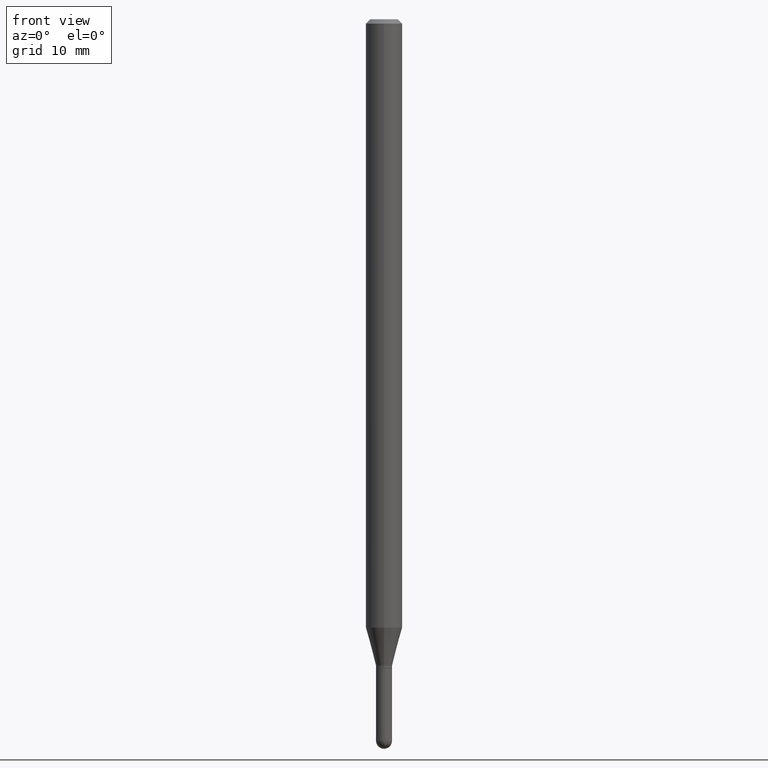
[diagram: clean part render]
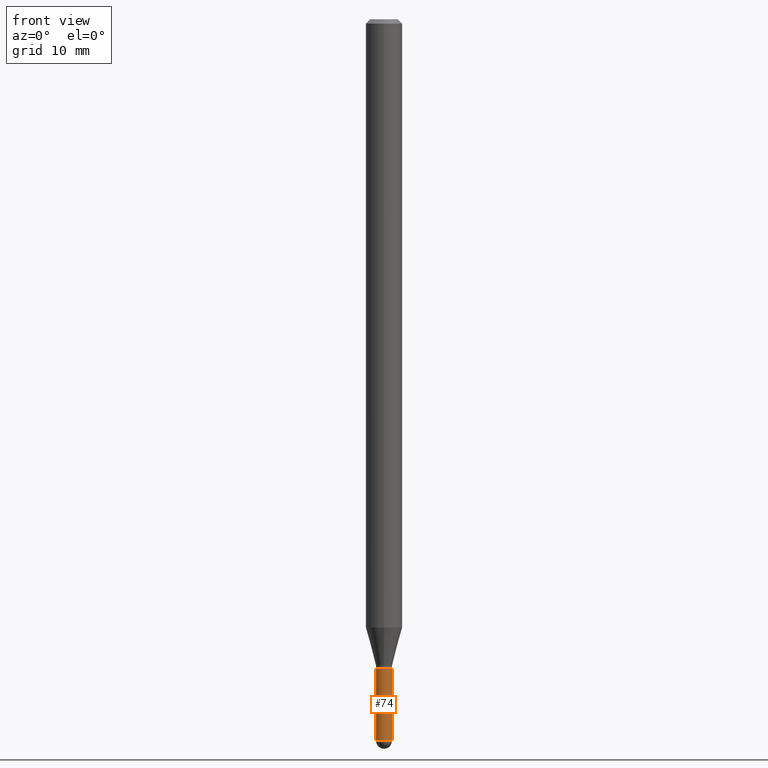
[diagram: same view with one face highlighted and labeled with its STEP entity id]
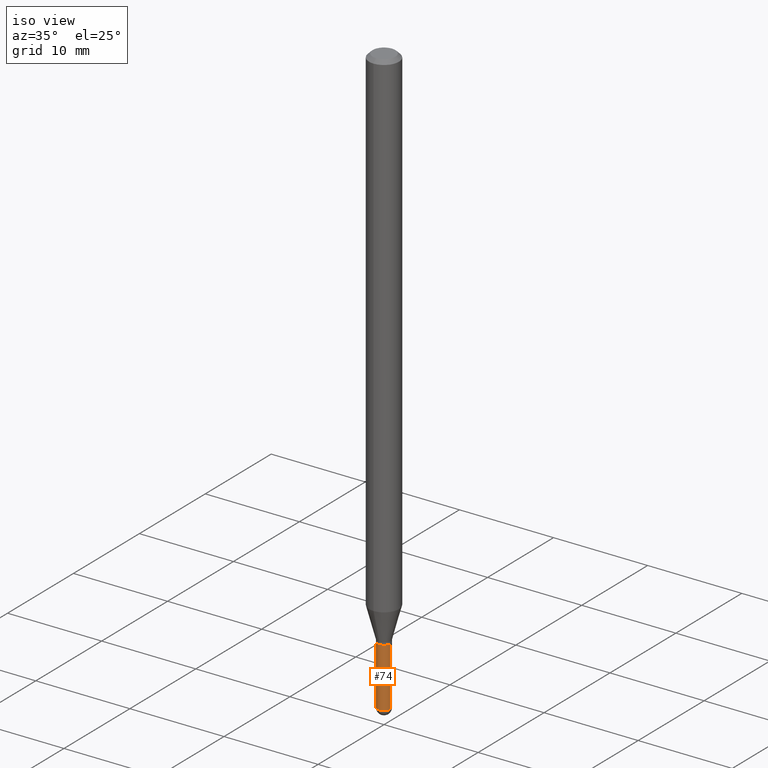
[diagram: same view with one face highlighted and labeled with its STEP entity id]
A machine part, front view. The second image highlights one B-rep face of the part: STEP entity #74.
A second angle (iso view) of the same face is appended — the face is thin or edge-on in the first view.
In plain terms, the highlighted cylindrical surface (edge-blend (fillet) strip) has radius 0.6985 mm, axis along (-0, 0, 1).
Its self-contained STEP definition (entity closure, byte-faithful):
#27 = ORIENTED_EDGE ( 'NONE', *, *, #470, .T. ) ;
#34 = EDGE_CURVE ( 'NONE', #144, #251, #220, .T. ) ;
#37 = CARTESIAN_POINT ( 'NONE',  ( -0.02750000000000000014, 1.953992523340275521E-16, -1.352707149820099181E-30 ) ) ;
#48 = ORIENTED_EDGE ( 'NONE', *, *, #405, .T. ) ;
#66 = ORIENTED_EDGE ( 'NONE', *, *, #466, .F. ) ;
#74 = ADVANCED_FACE ( 'NONE', ( #385 ), #296, .T. ) ;
#99 = EDGE_CURVE ( 'NONE', #144, #172, #420, .T. ) ;
#112 = DIRECTION ( 'NONE',  ( 1.000000000000000000, -6.982962677686279332E-15, 0.000000000000000000 ) ) ;
#122 = CARTESIAN_POINT ( 'NONE',  ( 5.441168093761929600E-29, -7.768545978925998537E-15, -2.225000000000000089 ) ) ;
#132 = VECTOR ( 'NONE', #268, 39.37007874015748143 ) ;
#139 = VERTEX_POINT ( 'NONE', #191 ) ;
#144 = VERTEX_POINT ( 'NONE', #271 ) ;
#151 = DIRECTION ( 'NONE',  ( -2.445468806185136597E-29, 3.491481338843145583E-15, 1.000000000000000000 ) ) ;
#152 = CARTESIAN_POINT ( 'NONE',  ( -1.953992523339674261E-16, -0.02750000000000868070, -2.472499999999999254 ) ) ;
#161 = DIRECTION ( 'NONE',  ( -2.445468806185136597E-29, 3.491481338843145583E-15, 1.000000000000000000 ) ) ;
#172 = VERTEX_POINT ( 'NONE', #468 ) ;
#177 = ORIENTED_EDGE ( 'NONE', *, *, #34, .T. ) ;
#187 = CARTESIAN_POINT ( 'NONE',  ( 0.000000000000000000, 0.000000000000000000, 0.000000000000000000 ) ) ;
#191 = CARTESIAN_POINT ( 'NONE',  ( 0.02750000000000000014, -7.960577452562371818E-15, -2.225000000000000089 ) ) ;
#199 = CARTESIAN_POINT ( 'NONE',  ( 6.046421623292748621E-29, -8.632687610289675147E-15, -2.472499999999999254 ) ) ;
#202 = DIRECTION ( 'NONE',  ( 1.000000000000000000, -6.982962677686279332E-15, 0.000000000000000000 ) ) ;
#219 = DIRECTION ( 'NONE',  ( -2.445468806185136877E-29, 3.491481338843145188E-15, 1.000000000000000000 ) ) ;
#220 = CIRCLE ( 'NONE', #280, 0.02750000000000000014 ) ;
#246 = ORIENTED_EDGE ( 'NONE', *, *, #99, .F. ) ;
#251 = VERTEX_POINT ( 'NONE', #152 ) ;
#255 = AXIS2_PLACEMENT_3D ( 'NONE', #122, #161, #272 ) ;
#260 = DIRECTION ( 'NONE',  ( 1.000000000000000000, -6.982962677686266711E-15, 4.876176775795935793E-29 ) ) ;
#268 = DIRECTION ( 'NONE',  ( -2.445468806185136877E-29, 3.491481338843145188E-15, 1.000000000000000000 ) ) ;
#271 = CARTESIAN_POINT ( 'NONE',  ( -0.02750000000000000014, -8.005217542273809511E-15, -2.472499999999999254 ) ) ;
#272 = DIRECTION ( 'NONE',  ( 1.000000000000000000, -6.982962677686279332E-15, 0.000000000000000000 ) ) ;
#280 = AXIS2_PLACEMENT_3D ( 'NONE', #386, #461, #112 ) ;
#291 = AXIS2_PLACEMENT_3D ( 'NONE', #199, #409, #202 ) ;
#296 = CYLINDRICAL_SURFACE ( 'NONE', #431, 0.02750000000000000014 ) ;
#312 = LINE ( 'NONE', #406, #132 ) ;
#384 = EDGE_LOOP ( 'NONE', ( #246, #177, #48, #27, #66 ) ) ;
#385 = FACE_OUTER_BOUND ( 'NONE', #384, .T. ) ;
#386 = CARTESIAN_POINT ( 'NONE',  ( 6.046421623292748621E-29, -8.632687610289675147E-15, -2.472499999999999254 ) ) ;
#398 = CARTESIAN_POINT ( 'NONE',  ( 0.02750000000000000014, -8.392648268244210912E-15, -2.472499999999999254 ) ) ;
#405 = EDGE_CURVE ( 'NONE', #251, #462, #475, .T. ) ;
#406 = CARTESIAN_POINT ( 'NONE',  ( 0.02750000000000000014, -1.920314736363723444E-16, 1.340948613343882413E-30 ) ) ;
#409 = DIRECTION ( 'NONE',  ( -2.445468806185136597E-29, 3.491481338843145583E-15, 1.000000000000000000 ) ) ;
#412 = CIRCLE ( 'NONE', #255, 0.02750000000000000014 ) ;
#416 = VECTOR ( 'NONE', #219, 39.37007874015748143 ) ;
#420 = LINE ( 'NONE', #37, #416 ) ;
#431 = AXIS2_PLACEMENT_3D ( 'NONE', #187, #151, #260 ) ;
#461 = DIRECTION ( 'NONE',  ( -2.445468806185136597E-29, 3.491481338843145583E-15, 1.000000000000000000 ) ) ;
#462 = VERTEX_POINT ( 'NONE', #398 ) ;
#466 = EDGE_CURVE ( 'NONE', #172, #139, #412, .T. ) ;
#468 = CARTESIAN_POINT ( 'NONE',  ( -0.02750000000000000014, -8.005217542273809511E-15, -2.225000000000000089 ) ) ;
#470 = EDGE_CURVE ( 'NONE', #462, #139, #312, .T. ) ;
#475 = CIRCLE ( 'NONE', #291, 0.02750000000000000014 ) ;